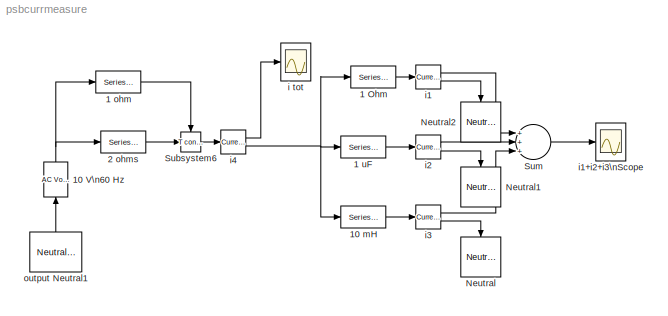
MODEL psbcurrmeasure
KIND model
BLOCK [Reference] 1 Ohm  REF=powerlib2/Elements/Series RLC Branch
  PSBOutputType = 1
  Ports = [1, 1]
  SourceBlock = powerlib2/Elements/Series RLC Branch
  SourceType = Series RLC Branch
  Tag = PoWeRsYsTeMbLoCk
  a = 1
  b = 0
  c = inf
  mesure = None
BLOCK [Reference] 1 ohm  REF=powerlib2/Elements/Series RLC Branch
  PSBOutputType = 1
  Ports = [1, 1]
  SourceBlock = powerlib2/Elements/Series RLC Branch
  SourceType = Series RLC Branch
  Tag = PoWeRsYsTeMbLoCk
  a = 1
  b = 0
  c = inf
  mesure = None
BLOCK [Reference] 1 uF  REF=powerlib2/Elements/Series RLC Branch
  PSBOutputType = 1
  Ports = [1, 1]
  SourceBlock = powerlib2/Elements/Series RLC Branch
  SourceType = Series RLC Branch
  Tag = PoWeRsYsTeMbLoCk
  a = 0
  b = 0
  c = 1e-6
  mesure = None
BLOCK [Reference] 10 V\n60 Hz  REF=powerlib2/Electrical\nSources/AC Voltage Source
  A = 10
  F = 60
  P = 0
  PSBOutputType = 1
  Ports = [1, 1]
  SourceBlock = powerlib2/Electrical\nSources/AC Voltage Source
  SourceType = AC Voltage Source
  Tag = PoWeRsYsTeMbLoCk
  mesure = None
  stime = 0
BLOCK [Reference] 10 mH  REF=powerlib2/Elements/Series RLC Branch
  PSBOutputType = 1
  Ports = [1, 1]
  SourceBlock = powerlib2/Elements/Series RLC Branch
  SourceType = Series RLC Branch
  Tag = PoWeRsYsTeMbLoCk
  a = 0
  b = 10
  c = inf
  mesure = None
BLOCK [Reference] 2 ohms  REF=powerlib2/Elements/Series RLC Branch
  PSBOutputType = 1
  Ports = [1, 1]
  SourceBlock = powerlib2/Elements/Series RLC Branch
  SourceType = Series RLC Branch
  Tag = PoWeRsYsTeMbLoCk
  a = 2
  b = 0
  c = inf
  mesure = None
BLOCK [Reference] Neutral  REF=powerlib2/Connectors/Neutral (input)
  Ports = [1]
  SourceBlock = powerlib2/Connectors/Neutral (input)
  SourceType = Neutral
  Tag = PoWeRsYsTeMbLoCk
  no = 50
BLOCK [Reference] Neutral1  REF=powerlib2/Connectors/Neutral (input)
  Ports = [1]
  SourceBlock = powerlib2/Connectors/Neutral (input)
  SourceType = Neutral
  Tag = PoWeRsYsTeMbLoCk
  no = 50
BLOCK [Reference] Neutral2  REF=powerlib2/Connectors/Neutral (input)
  Ports = [1]
  SourceBlock = powerlib2/Connectors/Neutral (input)
  SourceType = Neutral
  Tag = PoWeRsYsTeMbLoCk
  no = 50
BLOCK [Reference] Subsystem6  REF=powerlib2/Connectors/T connector
  PSBOutputType = 1
  Ports = [1, 1, 1]
  SourceBlock = powerlib2/Connectors/T connector
  SourceType = Bus Bar
  Tag = PoWeRsYsTeMbLoCk
BLOCK [Sum] Sum
  Inputs = +++
  Ports = [3, 1]
BLOCK [Scope] i tot
  DataFormat = Array
  NumInputPorts = 1
  Ports = [1]
  TickLabels = on
  TimeRange = 0.1
  YMax = 12
  YMin = -12
BLOCK [Reference] i1  REF=powerlib2/Measurements/Current Measurement
  OutputType = Magnitude
  PSBOutputType = 01
  PSBequivalent = 0
  PhasorSimulation = off
  Ports = [1, 2]
  SourceBlock = powerlib2/Measurements/Current Measurement
  SourceType = Current Measurement
  Tag = PoWeRsYsTeMmEaSuReMeNt
BLOCK [Scope] i1+i2+i3\nScope
  DataFormat = Array
  NumInputPorts = 1
  Ports = [1]
  TickLabels = on
  TimeRange = 0.1
  YMax = 12
  YMin = -12
BLOCK [Reference] i2  REF=powerlib2/Measurements/Current Measurement
  OutputType = Magnitude
  PSBOutputType = 01
  PSBequivalent = 0
  PhasorSimulation = off
  Ports = [1, 2]
  SourceBlock = powerlib2/Measurements/Current Measurement
  SourceType = Current Measurement
  Tag = PoWeRsYsTeMmEaSuReMeNt
BLOCK [Reference] i3  REF=powerlib2/Measurements/Current Measurement
  OutputType = Magnitude
  PSBOutputType = 01
  PSBequivalent = 0
  PhasorSimulation = off
  Ports = [1, 2]
  SourceBlock = powerlib2/Measurements/Current Measurement
  SourceType = Current Measurement
  Tag = PoWeRsYsTeMmEaSuReMeNt
BLOCK [Reference] i4  REF=powerlib2/Measurements/Current Measurement
  OutputType = Magnitude
  PSBOutputType = 01
  PSBequivalent = 0
  PhasorSimulation = off
  Ports = [1, 2]
  SourceBlock = powerlib2/Measurements/Current Measurement
  SourceType = Current Measurement
  Tag = PoWeRsYsTeMmEaSuReMeNt
BLOCK [Reference] output Neutral1  REF=powerlib2/Connectors/Neutral (output)
  PSBOutputType = 1
  Ports = [0, 1]
  SourceBlock = powerlib2/Connectors/Neutral (output)
  SourceType = Neutral
  Tag = PoWeRsYsTeMbLoCk
  no = 50
LINE 1 Ohm:1 -> i1:1
LINE 1 ohm:1 -> Subsystem6:enable
LINE 1 uF:1 -> i2:1
NET 10 V\n60 Hz:1 -> 1 ohm:1, 2 ohms:1
LINE 10 mH:1 -> i3:1
LINE 2 ohms:1 -> Subsystem6:1
LINE Subsystem6:1 -> i4:1
LINE Sum:1 -> i1+i2+i3\nScope:1
LINE i1:1 -> Sum:1
LINE i1:2 -> Neutral2:1
LINE i2:1 -> Sum:2
LINE i2:2 -> Neutral1:1
LINE i3:1 -> Sum:3
LINE i3:2 -> Neutral:1
LINE i4:1 -> i tot:1
NET i4:2 -> 1 Ohm:1, 1 uF:1, 10 mH:1
LINE output Neutral1:1 -> 10 V\n60 Hz:1
note: NET lines group one-source signal fan-out (src -> all destinations, sorted); 1:1 wires keep LINE
